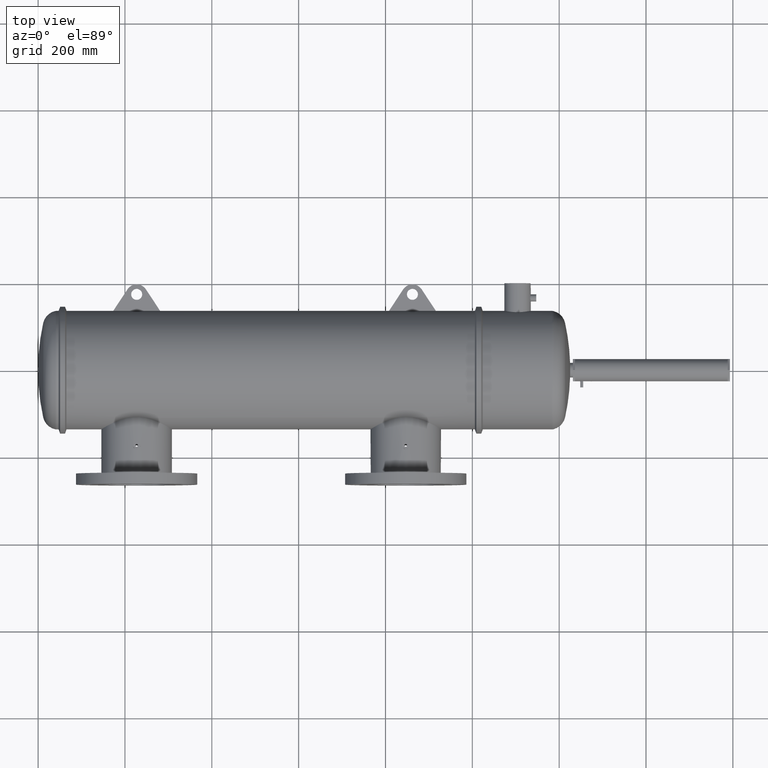
[diagram: clean part render]
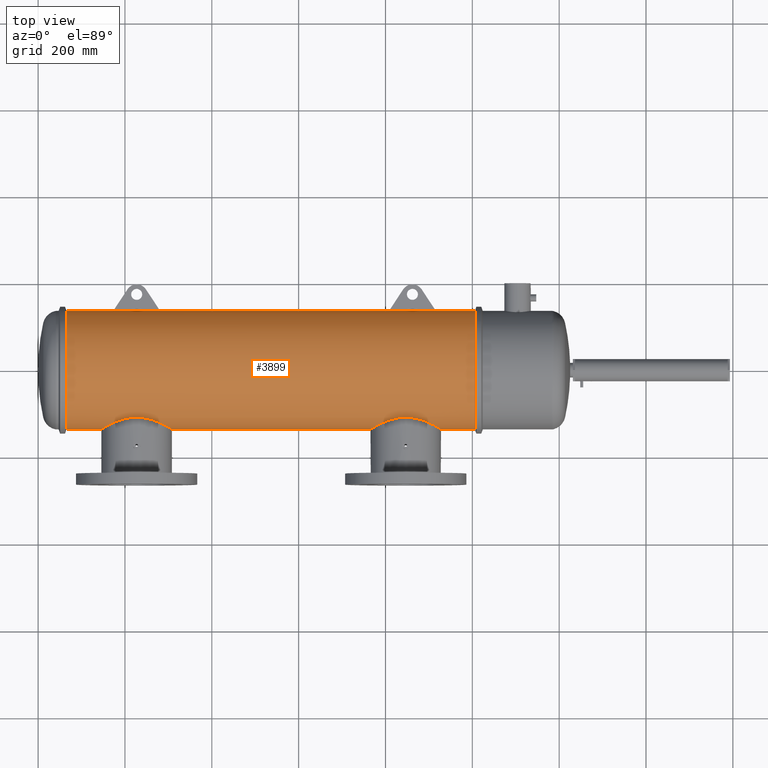
[diagram: same view with one face highlighted and labeled with its STEP entity id]
A machine part, top view. The second image highlights one B-rep face of the part: STEP entity #3899.
In plain terms, the highlighted cylindrical surface (partial cylindrical patch) has radius 136.525 mm, axis along (-1, 0, -0).
Its self-contained STEP definition (entity closure, byte-faithful):
#11 = CARTESIAN_POINT ( 'NONE',  ( 6.534671815832622200, -4.941297384899559800, 2.116959183514418400 ) ) ;
#23 = CARTESIAN_POINT ( 'NONE',  ( 39.60083111053822300, 4.831234793222033200, 2.381941341362917400 ) ) ;
#28 = CARTESIAN_POINT ( 'NONE',  ( 5.735479036835525500, -5.375007825107871000, -3.293080513677982000E-019 ) ) ;
#29 = CARTESIAN_POINT ( 'NONE',  ( 8.878122821673640500, -4.320985027269918200, 3.196841906858425300 ) ) ;
#42 = CARTESIAN_POINT ( 'NONE',  ( 6.028116187987716800, -5.206167466439103100, 1.340277761486192500 ) ) ;
#68 = CARTESIAN_POINT ( 'NONE',  ( 10.07615776907820900, -4.468858828034261600, 2.987028458037785100 ) ) ;
#75 = CARTESIAN_POINT ( 'NONE',  ( 5.822090545940645800, -5.323939033787544500, 0.7410242694495138300 ) ) ;
#173 = DIRECTION ( 'NONE',  ( -1.000000000000000000, 8.273921759108280900E-016, -0.0000000000000000000 ) ) ;
#190 = CARTESIAN_POINT ( 'NONE',  ( 12.12641592975402500, -5.373364310422112500, 0.1356452517023894700 ) ) ;
#218 = VERTEX_POINT ( 'NONE', #2849 ) ;
#254 = AXIS2_PLACEMENT_3D ( 'NONE', #7058, #173, #1972 ) ;
#256 = VECTOR ( 'NONE', #723, 39.37007874015748100 ) ;
#272 = DIRECTION ( 'NONE',  ( 1.000000000000000000, -8.273921759108280900E-016, 0.0000000000000000000 ) ) ;
#289 = CARTESIAN_POINT ( 'NONE',  ( 2.579100979076253800, 3.146306472120615500E-007, 0.0000000000000000000 ) ) ;
#385 = CARTESIAN_POINT ( 'NONE',  ( 31.46444722282175700, -4.706774420023686300, 2.596393439841609300 ) ) ;
#401 = CARTESIAN_POINT ( 'NONE',  ( 30.17836185290780200, -5.349586255494887000, 0.5326165018280276700 ) ) ;
#422 = CARTESIAN_POINT ( 'NONE',  ( 33.14366905566797100, -4.325011068737582700, 3.191393414857925500 ) ) ;
#452 = CARTESIAN_POINT ( 'NONE',  ( 39.60083022633880700, -5.375008985196261700, -3.291241836162370900E-016 ) ) ;
#469 = CARTESIAN_POINT ( 'NONE',  ( 39.60083111053821600, -1.731911471817332100, 5.100485536180544300 ) ) ;
#471 = AXIS2_PLACEMENT_3D ( 'NONE', #289, #3720, #4416 ) ;
#497 = EDGE_CURVE ( 'NONE', #218, #863, #2365, .T. ) ;
#499 = CARTESIAN_POINT ( 'NONE',  ( 34.94490591898632900, -4.611271304731676700, 2.762291557859466000 ) ) ;
#501 = CARTESIAN_POINT ( 'NONE',  ( 9.463533456321915300, -4.352274184478584800, 3.154220075589865900 ) ) ;
#527 = CARTESIAN_POINT ( 'NONE',  ( 35.73104329966341200, -4.942041029849721500, 2.113918209518154800 ) ) ;
#542 = ORIENTED_EDGE ( 'NONE', *, *, #3534, .F. ) ;
#548 = CARTESIAN_POINT ( 'NONE',  ( 36.52641646857046700, -5.373364630755303600, 0.1356320342420152000 ) ) ;
#549 = CARTESIAN_POINT ( 'NONE',  ( 7.737523241736865600, -4.482888961965052500, 2.965636830458920200 ) ) ;
#560 = CARTESIAN_POINT ( 'NONE',  ( 11.36440780600174000, -4.958332715586958100, 2.075441474412965900 ) ) ;
#571 = CARTESIAN_POINT ( 'NONE',  ( 7.935488441926860800, -4.434199739322871800, 3.037917448498888500 ) ) ;
#603 = CARTESIAN_POINT ( 'NONE',  ( 6.255879223371008100, -5.082679524512489200, 1.749040711027071800 ) ) ;
#613 = CARTESIAN_POINT ( 'NONE',  ( 5.910467032050950000, -5.272745599277024900, 1.048584362678096200 ) ) ;
#622 = CARTESIAN_POINT ( 'NONE',  ( 36.52227491814217300, -5.370903458972454000, 0.2168932640493000700 ) ) ;
#650 = VERTEX_POINT ( 'NONE', #6315 ) ;
#669 = CARTESIAN_POINT ( 'NONE',  ( 12.10171796705378700, -5.358712793658628300, 0.4317730696603192500 ) ) ;
#723 = DIRECTION ( 'NONE',  ( -1.000000000000000000, 8.273921759108280900E-016, -0.0000000000000000000 ) ) ;
#730 = CARTESIAN_POINT ( 'NONE',  ( 12.12883387857428700, -5.374802048271067000, 0.05429419774343390000 ) ) ;
#750 = LINE ( 'NONE', #4635, #5386 ) ;
#767 = B_SPLINE_CURVE_WITH_KNOTS ( 'NONE', 3,
 ( #7123, #1355, #7244, #5525, #401, #3272, #3773, #7294, #3172, #1513, #6678, #4945, #7321, #4997, #2052, #4353, #966, #5544, #5015, #5044, #6159, #6099, #4434, #914, #3812, #1488, #385, #2065, #6726, #935, #6139, #6176, #2663, #2095, #1450, #6742, #7338, #3232, #3250, #4451, #3862, #2032, #422, #3838, #1530, #2609 ),
 .UNSPECIFIED., .F., .F.,
 ( 4, 2, 2, 2, 2, 2, 2, 2, 2, 2, 2, 2, 2, 2, 2, 2, 2, 2, 2, 2, 2, 2, 4 ),
 ( 0.2603733164959427500, 0.2684950748530244800, 0.2766168332101062200, 0.2806777123886470800, 0.2847385915671878900, 0.2928603499242695700, 0.3009821082813511900, 0.3050429874598920000, 0.3091038666384327600, 0.3172256249955141000, 0.3253473833525955000, 0.3294082625311362500, 0.3334691417096770600, 0.3415909000667586300, 0.3497126584238401900, 0.3578344167809217600, 0.3618952959594624000, 0.3659561751380030500, 0.3740779334950843400, 0.3821996918521655700, 0.3842301314414359200, 0.3862605710307062100, 0.3903214502092468600 ),
 .UNSPECIFIED. ) ;
#863 = VERTEX_POINT ( 'NONE', #1899 ) ;
#914 = CARTESIAN_POINT ( 'NONE',  ( 31.22458414646406800, -4.807524720786678300, 2.404137780907944500 ) ) ;
#935 = CARTESIAN_POINT ( 'NONE',  ( 31.90104348600639400, -4.551067891444288800, 2.860377699113140000 ) ) ;
#947 = VECTOR ( 'NONE', #2034, 39.37007874015748100 ) ;
#966 = CARTESIAN_POINT ( 'NONE',  ( 30.65597611453734900, -5.082628482242812500, 1.749189100739273000 ) ) ;
#992 = CARTESIAN_POINT ( 'NONE',  ( 39.60083111053822300, 2.381941655993532200, 4.831234478591420100 ) ) ;
#1067 = CARTESIAN_POINT ( 'NONE',  ( 35.20258934707638300, -4.707714968915731800, 2.594695052599537800 ) ) ;
#1076 = CARTESIAN_POINT ( 'NONE',  ( 11.83512405955653400, -5.205450456522795500, 1.340293963979122300 ) ) ;
#1085 = CARTESIAN_POINT ( 'NONE',  ( 36.52917982423710400, -5.375007825107895900, 0.0000000000000000000 ) ) ;
#1105 = VERTEX_POINT ( 'NONE', #1516 ) ;
#1106 = CARTESIAN_POINT ( 'NONE',  ( 39.60083111053822300, 4.273710274099636700, 3.278700096556493600 ) ) ;
#1116 = CARTESIAN_POINT ( 'NONE',  ( 36.25698515119475500, -5.217679610351180700, 1.291906982343548500 ) ) ;
#1121 = CARTESIAN_POINT ( 'NONE',  ( 6.815373600816323900, 5.374523871610070300, 0.08333990753326353500 ) ) ;
#1129 = CARTESIAN_POINT ( 'NONE',  ( 11.85693317493086600, -5.217650465492674500, 1.292024858656857700 ) ) ;
#1130 = LINE ( 'NONE', #1212, #256 ) ;
#1143 = CARTESIAN_POINT ( 'NONE',  ( 36.31852845076420500, -5.252341568898184000, 1.146122608671361200 ) ) ;
#1144 = CARTESIAN_POINT ( 'NONE',  ( 8.501677666990884700, -4.341076463470509200, 3.169534228022510300 ) ) ;
#1145 = CARTESIAN_POINT ( 'NONE',  ( 36.06357383615594600, 5.374523871610046300, 0.08333990753326371600 ) ) ;
#1154 = CARTESIAN_POINT ( 'NONE',  ( 9.827062362438832500, -4.412367742990288600, 3.069540436262475400 ) ) ;
#1177 = CARTESIAN_POINT ( 'NONE',  ( 5.863175780064940700, -5.300037275465029100, 0.8960918367193684300 ) ) ;
#1203 = CARTESIAN_POINT ( 'NONE',  ( 6.073308518760357300, -5.181035325470386300, 1.434107133292558300 ) ) ;
#1205 = VECTOR ( 'NONE', #5286, 39.37007874015748100 ) ;
#1212 = CARTESIAN_POINT ( 'NONE',  ( 5.449043696650528900E-006, 5.375008454369165600, 6.582486513721743800E-016 ) ) ;
#1215 =( BOUNDED_CURVE ( )  B_SPLINE_CURVE ( 3, ( #3876, #2146, #1145, #5790 ),
 .UNSPECIFIED., .F., .T. ) 
 B_SPLINE_CURVE_WITH_KNOTS ( ( 4, 4 ),
 ( 0.0000000000000000000, 0.02325787548793046800 ),
 .UNSPECIFIED. ) 
 CURVE ( )  GEOMETRIC_REPRESENTATION_ITEM ( )  RATIONAL_B_SPLINE_CURVE ( ( 1.000000000000000000, 0.9999549231103063200, 0.9999549231103063200, 1.000000000000000000 ) ) 
 REPRESENTATION_ITEM ( '' )  );
#1224 = ORIENTED_EDGE ( 'NONE', *, *, #2348, .F. ) ;
#1253 = CARTESIAN_POINT ( 'NONE',  ( 9.776145522672669200, -4.402307470897649300, 3.083935646095826500 ) ) ;
#1272 = ORIENTED_EDGE ( 'NONE', *, *, #4435, .T. ) ;
#1355 = CARTESIAN_POINT ( 'NONE',  ( 30.13547903683552300, -5.375007825107890500, 0.1080032569432895400 ) ) ;
#1436 =( BOUNDED_CURVE ( )  B_SPLINE_CURVE ( 3, ( #2830, #1121, #6880, #4520 ),
 .UNSPECIFIED., .F., .T. ) 
 B_SPLINE_CURVE_WITH_KNOTS ( ( 4, 4 ),
 ( 3.118334778101862900, 3.141592653589793100 ),
 .UNSPECIFIED. ) 
 CURVE ( )  GEOMETRIC_REPRESENTATION_ITEM ( )  RATIONAL_B_SPLINE_CURVE ( ( 1.000000000000000000, 0.9999549231103063200, 0.9999549231103063200, 1.000000000000000000 ) ) 
 REPRESENTATION_ITEM ( '' )  );
#1449 = CARTESIAN_POINT ( 'NONE',  ( 31.81473452475017500, 5.373554771622319300, 0.1250000000000000000 ) ) ;
#1450 = CARTESIAN_POINT ( 'NONE',  ( 32.33586494862065300, -4.434115029401516100, 3.038041054493293200 ) ) ;
#1488 = CARTESIAN_POINT ( 'NONE',  ( 31.38250396117173600, -4.739991500496905100, 2.535463347313905200 ) ) ;
#1496 = CARTESIAN_POINT ( 'NONE',  ( 11.06325427652264500, 5.375008454369157600, 6.582486513721743800E-016 ) ) ;
#1513 = CARTESIAN_POINT ( 'NONE',  ( 30.31050054417878000, -5.272726369566093800, 1.048681915996266400 ) ) ;
#1516 = CARTESIAN_POINT ( 'NONE',  ( 36.52917982423710400, -5.375007825107895900, 0.0000000000000000000 ) ) ;
#1530 = CARTESIAN_POINT ( 'NONE',  ( 33.27862148709935800, -4.320978748330734500, 3.196850393700788800 ) ) ;
#1537 = CARTESIAN_POINT ( 'NONE',  ( 35.66205765722769900, -4.908928085219284500, 2.189713408698171100 ) ) ;
#1579 = CARTESIAN_POINT ( 'NONE',  ( 2.579100979076258200, 5.375008454369143400, 6.582486513721749700E-016 ) ) ;
#1582 = CARTESIAN_POINT ( 'NONE',  ( 39.60083111053820900, -5.203097051458443400, 1.393645916228845500 ) ) ;
#1587 = CARTESIAN_POINT ( 'NONE',  ( 12.12917982423710400, -5.375007825107876300, 0.0000000000000000000 ) ) ;
#1619 = CARTESIAN_POINT ( 'NONE',  ( 39.60083111053822300, 0.3517937747303615000, 5.375008139738515200 ) ) ;
#1624 = CARTESIAN_POINT ( 'NONE',  ( 35.44169094797655400, -4.807825875324456700, 2.404335654029067500 ) ) ;
#1697 = CARTESIAN_POINT ( 'NONE',  ( 39.60083022633880700, -5.375008985196261700, -3.291241836162370900E-016 ) ) ;
#1707 = CARTESIAN_POINT ( 'NONE',  ( 36.23518000858609200, -5.205481669030823400, 1.340172605830954700 ) ) ;
#1708 = CARTESIAN_POINT ( 'NONE',  ( 8.635358965702050000, -4.331089696136874800, 3.183140464304496900 ) ) ;
#1747 = ORIENTED_EDGE ( 'NONE', *, *, #7334, .F. ) ;
#1752 = CARTESIAN_POINT ( 'NONE',  ( 6.227714763413929200, -5.097575429480923700, 1.705174419643677800 ) ) ;
#1800 = CARTESIAN_POINT ( 'NONE',  ( 12.12917982423710400, -5.375007825107875400, 0.02706690673560841600 ) ) ;
#1834 = CARTESIAN_POINT ( 'NONE',  ( 5.449043696649326100E-006, 5.373554771622345100, 0.1250000000000000000 ) ) ;
#1893 = CARTESIAN_POINT ( 'NONE',  ( 5.449043696650528900E-006, 5.375008454369165600, 6.582486513721743800E-016 ) ) ;
#1899 = CARTESIAN_POINT ( 'NONE',  ( 11.06421291220847400, 5.373554771622334400, 0.1250000000000000000 ) ) ;
#1972 = DIRECTION ( 'NONE',  ( -8.273921938586684700E-016, -1.000000000000000000, 0.0000000000000000000 ) ) ;
#2032 = CARTESIAN_POINT ( 'NONE',  ( 33.11657182071319700, -4.326278396239411400, 3.189675769125875700 ) ) ;
#2034 = DIRECTION ( 'NONE',  ( -1.000000000000000000, 8.273921759108280900E-016, -0.0000000000000000000 ) ) ;
#2052 = CARTESIAN_POINT ( 'NONE',  ( 30.57373196064274300, -5.126421221521794400, 1.616385114890627900 ) ) ;
#2065 = CARTESIAN_POINT ( 'NONE',  ( 31.63364810749537200, -4.642225735243693300, 2.710115237236416300 ) ) ;
#2095 = CARTESIAN_POINT ( 'NONE',  ( 32.28577523967284400, -4.445652231771755500, 3.021152426388337400 ) ) ;
#2142 = CARTESIAN_POINT ( 'NONE',  ( 39.60083111053821600, -4.049459931124993700, 3.551949163328379700 ) ) ;
#2146 = CARTESIAN_POINT ( 'NONE',  ( 36.06325427652258500, 5.375008454369136300, 0.04167136257819258800 ) ) ;
#2177 = CARTESIAN_POINT ( 'NONE',  ( 9.039234109388738500, -4.320966278229081000, 3.196867248743247000 ) ) ;
#2192 = CARTESIAN_POINT ( 'NONE',  ( 11.63793810717211700, -5.097919537612193100, 1.705877881590637200 ) ) ;
#2201 = CARTESIAN_POINT ( 'NONE',  ( 39.60083111053821600, 4.664602223304413500, 2.693688952797079300 ) ) ;
#2205 = CARTESIAN_POINT ( 'NONE',  ( 34.02111500732848300, -4.375225417697532000, 3.122224169517532600 ) ) ;
#2206 = CARTESIAN_POINT ( 'NONE',  ( 6.711577159216829200, -4.858145116798382900, 2.300154178794082700 ) ) ;
#2229 = CARTESIAN_POINT ( 'NONE',  ( 36.03802869668179200, -5.097967704092583000, 1.705733621750331600 ) ) ;
#2230 = CARTESIAN_POINT ( 'NONE',  ( 6.404466135698663200, -5.005771729262621200, 1.959639095503343600 ) ) ;
#2298 = CARTESIAN_POINT ( 'NONE',  ( 10.36174314260566100, -4.550455003691378200, 2.861369716635247400 ) ) ;
#2343 = CARTESIAN_POINT ( 'NONE',  ( 10.88406810460554100, -4.740787452716062100, 2.533960158021442600 ) ) ;
#2348 = EDGE_CURVE ( 'NONE', #650, #5390, #5475, .T. ) ;
#2365 = LINE ( 'NONE', #1834, #6194 ) ;
#2382 = DIRECTION ( 'NONE',  ( -1.000000000000000000, 8.273921759108280900E-016, -0.0000000000000000000 ) ) ;
#2425 = CARTESIAN_POINT ( 'NONE',  ( 5.449043696650528900E-006, 5.375008454369165600, 6.582486513721743800E-016 ) ) ;
#2543 = ORIENTED_EDGE ( 'NONE', *, *, #6319, .T. ) ;
#2582 = VERTEX_POINT ( 'NONE', #4474 ) ;
#2609 = CARTESIAN_POINT ( 'NONE',  ( 33.33232943053631200, -4.320978748330736300, 3.196850393700789300 ) ) ;
#2663 = CARTESIAN_POINT ( 'NONE',  ( 32.18662337964880000, -4.470032486586873700, 2.984961524516816000 ) ) ;
#2668 = CARTESIAN_POINT ( 'NONE',  ( 39.60083111053821600, -0.7035779067823309000, 5.340360364917113000 ) ) ;
#2705 = CARTESIAN_POINT ( 'NONE',  ( 39.60083111053821600, -5.375007825107899400, 0.3517934600997456600 ) ) ;
#2737 = EDGE_CURVE ( 'NONE', #650, #7322, #4511, .T. ) ;
#2739 = CARTESIAN_POINT ( 'NONE',  ( 39.60083111053821600, -3.551948848697773300, 4.049460245755600600 ) ) ;
#2745 = CARTESIAN_POINT ( 'NONE',  ( 33.33232943053631200, -4.320978748330736300, 3.196850393700789300 ) ) ;
#2758 = CARTESIAN_POINT ( 'NONE',  ( 11.52322315305939800, -5.037975349285789900, 1.875528559254045400 ) ) ;
#2766 = CARTESIAN_POINT ( 'NONE',  ( 39.60083111053821600, -5.100485221549928600, 1.731911786447945600 ) ) ;
#2773 = CARTESIAN_POINT ( 'NONE',  ( 34.07344422767565800, -4.383781193235752700, 3.110214267648784500 ) ) ;
#2783 = CARTESIAN_POINT ( 'NONE',  ( 11.76579449012679600, -5.167102609319917100, 1.481222573982051300 ) ) ;
#2794 = CARTESIAN_POINT ( 'NONE',  ( 33.86397463882426000, -4.352328371482397700, 3.154145430295705900 ) ) ;
#2796 = CARTESIAN_POINT ( 'NONE',  ( 8.824249774869711500, -4.321992792964529400, 3.195481140350527200 ) ) ;
#2815 = CARTESIAN_POINT ( 'NONE',  ( 5.449043687756049300E-006, -5.375007825107866600, 0.0000000000000000000 ) ) ;
#2825 = CARTESIAN_POINT ( 'NONE',  ( 6.982282729583408500, -4.740082699066595000, 2.535292842899302500 ) ) ;
#2830 = CARTESIAN_POINT ( 'NONE',  ( 6.814734524750262400, 5.373554771622336200, 0.1250000000000000000 ) ) ;
#2849 = CARTESIAN_POINT ( 'NONE',  ( 6.814734524750262400, 5.373554771622336200, 0.1250000000000000000 ) ) ;
#2856 = CARTESIAN_POINT ( 'NONE',  ( 36.44308507795383200, -5.324224106822828000, 0.7444825928127591900 ) ) ;
#2878 = CARTESIAN_POINT ( 'NONE',  ( 8.188852466262581200, -4.383272696462317900, 3.110998273017834500 ) ) ;
#2888 = CARTESIAN_POINT ( 'NONE',  ( 10.54462792657590400, -4.611173774918007100, 2.762454302825232400 ) ) ;
#2900 = CARTESIAN_POINT ( 'NONE',  ( 36.48551590511708300, -5.349125776193975700, 0.5370941122951401500 ) ) ;
#2910 = CARTESIAN_POINT ( 'NONE',  ( 10.63263442813579700, -4.642816263482791900, 2.709110504970410300 ) ) ;
#2917 = CARTESIAN_POINT ( 'NONE',  ( 5.740936256740442700, -5.371756934328479900, 0.2150425739588806600 ) ) ;
#2952 = EDGE_CURVE ( 'NONE', #3362, #3298, #6343, .T. ) ;
#2971 = CARTESIAN_POINT ( 'NONE',  ( 6.815693160456486800, 5.375008454369160300, 6.582486513721743800E-016 ) ) ;
#3027 = CARTESIAN_POINT ( 'NONE',  ( 2.579100979076249400, -5.375007825107847900, 0.0000000000000000000 ) ) ;
#3044 = CARTESIAN_POINT ( 'NONE',  ( 11.91848831836088400, -5.252318708625803200, 1.146228147450304700 ) ) ;
#3134 = ORIENTED_EDGE ( 'NONE', *, *, #3329, .T. ) ;
#3145 = B_SPLINE_CURVE_WITH_KNOTS ( 'NONE', 3,
 ( #452, #2705, #6246, #1582, #2766, #6163, #5646, #6847, #2142, #2739, #7412, #3347, #6812, #469, #4531, #2668, #5121, #1619, #4457, #6752, #6775, #992, #5698, #3962, #6352, #4011, #1106, #2201, #23, #4591, #4037, #4060, #5190, #6911 ),
 .UNSPECIFIED., .F., .F.,
 ( 4, 2, 2, 2, 2, 2, 2, 2, 2, 2, 2, 2, 2, 2, 2, 2, 4 ),
 ( 0.5000000000000000000, 0.5312500000000000000, 0.5625000000000000000, 0.5937500000000000000, 0.6250000000000000000, 0.6562500000000000000, 0.6875000000000001100, 0.7187500000000000000, 0.7500000000000000000, 0.7812500000000000000, 0.8125000000000000000, 0.8437500000000000000, 0.8750000000000000000, 0.9062500000000000000, 0.9375000000000000000, 0.9687500000000000000, 1.000000000000000000 ),
 .UNSPECIFIED. ) ;
#3172 = CARTESIAN_POINT ( 'NONE',  ( 30.26320053908389000, -5.300022932131089900, 0.8961769201844578300 ) ) ;
#3227 = LINE ( 'NONE', #7476, #3403 ) ;
#3232 = CARTESIAN_POINT ( 'NONE',  ( 32.79681724609879700, -4.352825707961236500, 3.153458011038672300 ) ) ;
#3250 = CARTESIAN_POINT ( 'NONE',  ( 32.90213181539472500, -4.341031038746834300, 3.169596366409747300 ) ) ;
#3272 = CARTESIAN_POINT ( 'NONE',  ( 30.21018778279680800, -5.330905308534741300, 0.6891435379636391400 ) ) ;
#3298 = VERTEX_POINT ( 'NONE', #1587 ) ;
#3311 = CARTESIAN_POINT ( 'NONE',  ( 34.76205377358530800, -4.550552916960153700, 2.861214057811235300 ) ) ;
#3329 = EDGE_CURVE ( 'NONE', #6863, #1105, #5869, .T. ) ;
#3347 = CARTESIAN_POINT ( 'NONE',  ( 39.60083111053821600, -2.693688638166461800, 4.664601908673796900 ) ) ;
#3352 = CARTESIAN_POINT ( 'NONE',  ( 34.22745307568795400, -4.412447084991268500, 3.069426412508181400 ) ) ;
#3353 = CARTESIAN_POINT ( 'NONE',  ( 9.358114798717316800, -4.340617456666036500, 3.170161636733196200 ) ) ;
#3362 = VERTEX_POINT ( 'NONE', #28 ) ;
#3403 = VECTOR ( 'NONE', #3918, 39.37007874015748100 ) ;
#3413 = CARTESIAN_POINT ( 'NONE',  ( 7.593602566793592200, -4.522670044543008100, 2.904910948901954900 ) ) ;
#3434 = CARTESIAN_POINT ( 'NONE',  ( 7.885403791028891400, -4.445739792432004100, 3.021023603896181500 ) ) ;
#3463 = CARTESIAN_POINT ( 'NONE',  ( 8.086627073126855700, -4.401861216280408900, 3.084763803830189700 ) ) ;
#3465 = LINE ( 'NONE', #2425, #1205 ) ;
#3479 = CARTESIAN_POINT ( 'NONE',  ( 5.762373014788998700, -5.359048969499109000, 0.4273289372698257900 ) ) ;
#3499 = CARTESIAN_POINT ( 'NONE',  ( 11.04149662315126600, -4.807740428126800600, 2.404506537294990300 ) ) ;
#3511 = CARTESIAN_POINT ( 'NONE',  ( 36.50172326547107800, -5.358715930169902100, 0.4317316148196079200 ) ) ;
#3534 = EDGE_CURVE ( 'NONE', #4625, #1105, #7190, .T. ) ;
#3592 = DIRECTION ( 'NONE',  ( -1.000000000000000000, 8.273921759108280900E-016, -0.0000000000000000000 ) ) ;
#3611 = ORIENTED_EDGE ( 'NONE', *, *, #497, .F. ) ;
#3701 = VERTEX_POINT ( 'NONE', #2971 ) ;
#3720 = DIRECTION ( 'NONE',  ( -1.000000000000000000, 8.273921759108280900E-016, -0.0000000000000000000 ) ) ;
#3773 = CARTESIAN_POINT ( 'NONE',  ( 30.22210733472385900, -5.323929221530093500, 0.7410951149761313400 ) ) ;
#3812 = CARTESIAN_POINT ( 'NONE',  ( 31.26349905586406700, -4.790576887304715600, 2.437709713491520000 ) ) ;
#3838 = CARTESIAN_POINT ( 'NONE',  ( 33.22474423640207400, -4.321980400645880000, 3.195497890574240600 ) ) ;
#3839 = ORIENTED_EDGE ( 'NONE', *, *, #6170, .T. ) ;
#3862 = CARTESIAN_POINT ( 'NONE',  ( 33.06267530559787100, -4.329300955208083200, 3.185572085395182600 ) ) ;
#3873 = CARTESIAN_POINT ( 'NONE',  ( 35.86214447512192300, -5.006758123534425800, 1.957122016668238200 ) ) ;
#3876 = CARTESIAN_POINT ( 'NONE',  ( 36.06325427652258500, 5.375008454369136300, 6.582486513721743800E-016 ) ) ;
#3899 = ADVANCED_FACE ( 'NONE', ( #5281 ), #5916, .T. ) ;
#3911 = ORIENTED_EDGE ( 'NONE', *, *, #4117, .F. ) ;
#3918 = DIRECTION ( 'NONE',  ( -1.000000000000000000, 8.273921759108280900E-016, -0.0000000000000000000 ) ) ;
#3943 = CARTESIAN_POINT ( 'NONE',  ( 34.66832484761322100, -4.521862738430088200, 2.906165215051325300 ) ) ;
#3944 = CARTESIAN_POINT ( 'NONE',  ( 7.320630299928387400, -4.610988638921803300, 2.762745674904474300 ) ) ;
#3962 = CARTESIAN_POINT ( 'NONE',  ( 39.60083111053821600, 3.278700411187107600, 4.273709959469022700 ) ) ;
#3975 = CARTESIAN_POINT ( 'NONE',  ( 5.735479036835529100, -5.375007825107872800, 0.1079927237980347900 ) ) ;
#3976 = ORIENTED_EDGE ( 'NONE', *, *, #4067, .T. ) ;
#3984 = CARTESIAN_POINT ( 'NONE',  ( 36.16586264531451900, -5.167139998950562900, 1.481092030653899900 ) ) ;
#4002 = VERTEX_POINT ( 'NONE', #6130 ) ;
#4011 = CARTESIAN_POINT ( 'NONE',  ( 39.60083111053821600, 4.049460560386223500, 3.551949163328381500 ) ) ;
#4018 = CIRCLE ( 'NONE', #471, 5.375008139738495700 ) ;
#4037 = CARTESIAN_POINT ( 'NONE',  ( 39.60083111053822300, 5.203097680719674000, 1.393645916228859200 ) ) ;
#4060 = CARTESIAN_POINT ( 'NONE',  ( 39.60083111053821600, 5.340360679547729600, 0.7035782214129531200 ) ) ;
#4067 = EDGE_CURVE ( 'NONE', #6150, #5390, #1215, .T. ) ;
#4076 = CARTESIAN_POINT ( 'NONE',  ( 5.946696095909337600, -5.252021659360880600, 1.147515850562982300 ) ) ;
#4117 = EDGE_CURVE ( 'NONE', #4002, #3298, #3227, .T. ) ;
#4241 = ORIENTED_EDGE ( 'NONE', *, *, #5497, .F. ) ;
#4306 = CARTESIAN_POINT ( 'NONE',  ( 36.06325427652258500, 5.375008454369136300, 6.582486513721743800E-016 ) ) ;
#4353 = CARTESIAN_POINT ( 'NONE',  ( 30.62780680849810400, -5.097526573826221400, 1.705320564417956300 ) ) ;
#4355 = EDGE_CURVE ( 'NONE', #2582, #863, #4373, .T. ) ;
#4373 =( BOUNDED_CURVE ( )  B_SPLINE_CURVE ( 3, ( #1496, #6113, #4919, #6628 ),
 .UNSPECIFIED., .F., .T. ) 
 B_SPLINE_CURVE_WITH_KNOTS ( ( 4, 4 ),
 ( 0.0000000000000000000, 0.02325787548793047100 ),
 .UNSPECIFIED. ) 
 CURVE ( )  GEOMETRIC_REPRESENTATION_ITEM ( )  RATIONAL_B_SPLINE_CURVE ( ( 1.000000000000000000, 0.9999549231103063200, 0.9999549231103063200, 1.000000000000000000 ) ) 
 REPRESENTATION_ITEM ( '' )  );
#4416 = DIRECTION ( 'NONE',  ( -8.132000317445987000E-016, -1.000000000000000000, 0.0000000000000000000 ) ) ;
#4428 = CARTESIAN_POINT ( 'NONE',  ( 39.60083022633882900, 5.375009614457495900, 3.291243256860871900E-016 ) ) ;
#4434 = CARTESIAN_POINT ( 'NONE',  ( 31.14875131337305400, -4.841251607898253300, 2.335477522555838600 ) ) ;
#4435 = EDGE_CURVE ( 'NONE', #4625, #5172, #3145, .T. ) ;
#4451 = CARTESIAN_POINT ( 'NONE',  ( 33.03583218325426400, -4.331057249951047800, 3.183184606522918800 ) ) ;
#4457 = CARTESIAN_POINT ( 'NONE',  ( 39.60083111053822300, 0.7035785360435564700, 5.340360364917113000 ) ) ;
#4463 = CARTESIAN_POINT ( 'NONE',  ( 35.62649174083491500, -4.892136429503371400, 2.226950908192078000 ) ) ;
#4474 = CARTESIAN_POINT ( 'NONE',  ( 11.06325427652264500, 5.375008454369157600, 6.582486513721743800E-016 ) ) ;
#4511 =( BOUNDED_CURVE ( )  B_SPLINE_CURVE ( 3, ( #1449, #7087, #4799, #7243 ),
 .UNSPECIFIED., .F., .F. ) 
 B_SPLINE_CURVE_WITH_KNOTS ( ( 4, 4 ),
 ( 3.118334778101863300, 3.141592653589793100 ),
 .UNSPECIFIED. ) 
 CURVE ( )  GEOMETRIC_REPRESENTATION_ITEM ( )  RATIONAL_B_SPLINE_CURVE ( ( 1.000000000000000000, 0.9999549231103063200, 0.9999549231103063200, 1.000000000000000000 ) ) 
 REPRESENTATION_ITEM ( '' )  );
#4520 = CARTESIAN_POINT ( 'NONE',  ( 6.815693160456486800, 5.375008454369160300, 6.582486513721743800E-016 ) ) ;
#4531 = CARTESIAN_POINT ( 'NONE',  ( 39.60083111053822300, -1.393645601598237000, 5.203097366089058300 ) ) ;
#4535 = CARTESIAN_POINT ( 'NONE',  ( 35.03289716489992100, -4.642912742349666100, 2.708945173354822400 ) ) ;
#4536 = CARTESIAN_POINT ( 'NONE',  ( 9.620691804970462600, -4.375158734489269300, 3.122317580229195100 ) ) ;
#4566 = CARTESIAN_POINT ( 'NONE',  ( 7.500738784632093600, -4.551164022066153300, 2.860224811857499500 ) ) ;
#4591 = CARTESIAN_POINT ( 'NONE',  ( 39.60083111053822300, 5.100485850811160100, 1.731911786447953000 ) ) ;
#4598 = CARTESIAN_POINT ( 'NONE',  ( 36.18964809824004900, -5.180228557972238700, 1.434689556348453000 ) ) ;
#4599 = CARTESIAN_POINT ( 'NONE',  ( 6.603288475323051200, -4.908278111944783400, 2.192215887407712200 ) ) ;
#4624 = CARTESIAN_POINT ( 'NONE',  ( 8.396377845956077800, -4.352880156320095400, 3.153382969147826600 ) ) ;
#4625 = VERTEX_POINT ( 'NONE', #1697 ) ;
#4635 = CARTESIAN_POINT ( 'NONE',  ( 5.449043687756049300E-006, -5.375007825107866600, 0.0000000000000000000 ) ) ;
#4663 = CARTESIAN_POINT ( 'NONE',  ( 5.810173309975708900, -5.330913787521053500, 0.6890775623529922200 ) ) ;
#4725 = CARTESIAN_POINT ( 'NONE',  ( 12.12745193149852300, -5.373980291036097000, 0.1085391638080142700 ) ) ;
#4746 = CARTESIAN_POINT ( 'NONE',  ( 12.04306863106081900, -5.324214486899816000, 0.7445527440632568900 ) ) ;
#4799 = CARTESIAN_POINT ( 'NONE',  ( 31.81569316045639400, 5.375008454369137200, 0.04167136257819203200 ) ) ;
#4851 = LINE ( 'NONE', #1893, #5936 ) ;
#4919 = CARTESIAN_POINT ( 'NONE',  ( 11.06357383615601200, 5.374523871610067600, 0.08333990753326371600 ) ) ;
#4921 = ORIENTED_EDGE ( 'NONE', *, *, #6305, .T. ) ;
#4945 = CARTESIAN_POINT ( 'NONE',  ( 30.42817131681466200, -5.206136672475350800, 1.340397971859443900 ) ) ;
#4997 = CARTESIAN_POINT ( 'NONE',  ( 30.54781045870885600, -5.140425078016553700, 1.571308343800071200 ) ) ;
#5015 = CARTESIAN_POINT ( 'NONE',  ( 30.80458832328141500, -5.005709908809705200, 1.959797194672693800 ) ) ;
#5031 = CARTESIAN_POINT ( 'NONE',  ( 34.37834828597172500, -4.444699688244354800, 3.022711796154010900 ) ) ;
#5044 = CARTESIAN_POINT ( 'NONE',  ( 30.93481633183858300, -4.941227143620612800, 2.117123305602678100 ) ) ;
#5089 = VECTOR ( 'NONE', #272, 39.37007874015748100 ) ;
#5121 = CARTESIAN_POINT ( 'NONE',  ( 39.60083111053822300, -0.3517931454691321500, 5.375008139738516100 ) ) ;
#5128 = CARTESIAN_POINT ( 'NONE',  ( 35.28428834816370600, -4.740878325206647800, 2.533790112141898600 ) ) ;
#5129 = CARTESIAN_POINT ( 'NONE',  ( 8.716086999426105200, -4.326302627185545400, 3.189642907264506700 ) ) ;
#5157 = CARTESIAN_POINT ( 'NONE',  ( 36.52917982423710400, -5.375007825107895900, 0.02706426674607771700 ) ) ;
#5172 = VERTEX_POINT ( 'NONE', #4428 ) ;
#5175 = CARTESIAN_POINT ( 'NONE',  ( 36.35458160841977800, -5.272970534410854200, 1.047328046668175800 ) ) ;
#5190 = CARTESIAN_POINT ( 'NONE',  ( 39.60083111053822300, 5.375008454369131000, 0.3517934600997484900 ) ) ;
#5201 = CARTESIAN_POINT ( 'NONE',  ( 7.233387142621150900, -4.642321469768308600, 2.709951279637595500 ) ) ;
#5230 = CARTESIAN_POINT ( 'NONE',  ( 36.52745226837650700, -5.373980491339524200, 0.1085285853650725800 ) ) ;
#5240 = EDGE_CURVE ( 'NONE', #218, #3701, #1436, .T. ) ;
#5244 = CARTESIAN_POINT ( 'NONE',  ( 6.147733281081130500, -5.140466901000604800, 1.571171402219135000 ) ) ;
#5258 = CARTESIAN_POINT ( 'NONE',  ( 33.33232943053631200, -4.320978748330736300, 3.196850393700789300 ) ) ;
#5281 = FACE_OUTER_BOUND ( 'NONE', #5332, .T. ) ;
#5286 = DIRECTION ( 'NONE',  ( -1.000000000000000000, 8.273921759108280900E-016, -0.0000000000000000000 ) ) ;
#5308 = CARTESIAN_POINT ( 'NONE',  ( 11.95454834835666700, -5.272951447476386600, 1.047425043786761400 ) ) ;
#5329 = CARTESIAN_POINT ( 'NONE',  ( 12.12227357172657000, -5.370902659115627900, 0.2169143889843447600 ) ) ;
#5332 = EDGE_LOOP ( 'NONE', ( #1272, #4921, #3976, #1224, #6206, #2543, #6873, #3611, #6875, #6220, #4241, #1747, #6956, #3911, #3839, #3134, #542 ) ) ;
#5357 = DIRECTION ( 'NONE',  ( 1.000000000000000000, -8.273921759108280900E-016, 0.0000000000000000000 ) ) ;
#5386 = VECTOR ( 'NONE', #2382, 39.37007874015748100 ) ;
#5390 = VERTEX_POINT ( 'NONE', #7073 ) ;
#5475 = LINE ( 'NONE', #7175, #5089 ) ;
#5497 = EDGE_CURVE ( 'NONE', #7120, #7186, #4018, .T. ) ;
#5525 = CARTESIAN_POINT ( 'NONE',  ( 30.16237822585759400, -5.359045884380832600, 0.4273701709447971800 ) ) ;
#5544 = CARTESIAN_POINT ( 'NONE',  ( 30.74298859352569800, -5.037171455475461600, 1.877731354451201100 ) ) ;
#5624 = CARTESIAN_POINT ( 'NONE',  ( 35.92333395407638400, -5.038032420684773500, 1.875374966822520600 ) ) ;
#5646 = CARTESIAN_POINT ( 'NONE',  ( 39.60083111053821600, -4.664601594043183800, 2.693688952797076200 ) ) ;
#5666 = CARTESIAN_POINT ( 'NONE',  ( 11.26189998136322000, -4.908853219175960600, 2.189881279579822100 ) ) ;
#5680 = CARTESIAN_POINT ( 'NONE',  ( 8.662198242410463300, -4.329330720778089300, 3.185531636332772400 ) ) ;
#5688 = CARTESIAN_POINT ( 'NONE',  ( 11.46202284368655800, -5.006696543922484600, 1.957279762535151700 ) ) ;
#5698 = CARTESIAN_POINT ( 'NONE',  ( 39.60083111053822300, 2.693689267427692900, 4.664601908673801300 ) ) ;
#5702 = CARTESIAN_POINT ( 'NONE',  ( 33.43972436568764600, -4.320978748330738000, 3.196850393700790600 ) ) ;
#5790 = CARTESIAN_POINT ( 'NONE',  ( 36.06421291220841100, 5.373554771622314000, 0.1250000000000000000 ) ) ;
#5798 = CARTESIAN_POINT ( 'NONE',  ( 9.977981586947695500, -4.444613017312532200, 3.022839110141788900 ) ) ;
#5820 = CARTESIAN_POINT ( 'NONE',  ( 6.173649980894952100, -5.126465356298465900, 1.616245028808169600 ) ) ;
#5828 = EDGE_CURVE ( 'NONE', #3701, #7186, #1130, .T. ) ;
#5834 = CARTESIAN_POINT ( 'NONE',  ( 36.09153434714475800, -5.126630718330822000, 1.617840300870334600 ) ) ;
#5869 = B_SPLINE_CURVE_WITH_KNOTS ( 'NONE', 3,
 ( #2745, #5702, #7397, #6250, #2794, #2205, #2773, #6854, #3352, #5031, #7417, #3943, #3311, #499, #4535, #1067, #5128, #1624, #6876, #4463, #1537, #527, #6779, #3873, #5624, #2229, #5834, #3984, #4598, #1707, #1116, #1143, #5175, #6337, #2856, #2900, #3511, #7474, #622, #548, #5230, #6318, #5157, #1085 ),
 .UNSPECIFIED., .F., .F.,
 ( 4, 2, 2, 2, 2, 2, 2, 2, 2, 2, 2, 2, 2, 2, 2, 2, 2, 2, 2, 2, 2, 4 ),
 ( 0.3903214502092468600, 0.3984416243981669900, 0.4065617985870871900, 0.4106218856815472800, 0.4146819727760073800, 0.4228021469649272400, 0.4309223211538471000, 0.4390424953427669600, 0.4471626695316868700, 0.4552828437206067300, 0.4593429308150666600, 0.4634030179095265900, 0.4715231920984465100, 0.4796433662873663700, 0.4837034533818261900, 0.4877635404762861200, 0.4958837146652059200, 0.5040038888541258400, 0.5121240630430455900, 0.5161841501375055200, 0.5182141936847355400, 0.5202442372319654500 ),
 .UNSPECIFIED. ) ;
#5916 = CYLINDRICAL_SURFACE ( 'NONE', #254, 5.375008139738516100 ) ;
#5936 = VECTOR ( 'NONE', #3592, 39.37007874015748100 ) ;
#5941 = CARTESIAN_POINT ( 'NONE',  ( 12.11812282200876300, -5.368437093074512700, 0.2710585110308196300 ) ) ;
#6099 = CARTESIAN_POINT ( 'NONE',  ( 31.11175247821147800, -4.858064937314527900, 2.300323546529923700 ) ) ;
#6113 = CARTESIAN_POINT ( 'NONE',  ( 11.06325427652264700, 5.375008454369157600, 0.04167136257819258800 ) ) ;
#6130 = CARTESIAN_POINT ( 'NONE',  ( 30.13547903683552300, -5.375007825107891400, -3.293049982897498600E-019 ) ) ;
#6139 = CARTESIAN_POINT ( 'NONE',  ( 31.99392287365672900, -4.522574878585210500, 2.905059006629321100 ) ) ;
#6150 = VERTEX_POINT ( 'NONE', #4306 ) ;
#6159 = CARTESIAN_POINT ( 'NONE',  ( 31.00344483356455100, -4.908203760405744900, 2.192382469948645200 ) ) ;
#6163 = CARTESIAN_POINT ( 'NONE',  ( 39.60083111053821600, -4.831234163960803400, 2.381941341362910200 ) ) ;
#6170 = EDGE_CURVE ( 'NONE', #4002, #6863, #767, .T. ) ;
#6176 = CARTESIAN_POINT ( 'NONE',  ( 32.13786845388758500, -4.482796874440916600, 2.965776001473497700 ) ) ;
#6194 = VECTOR ( 'NONE', #5357, 39.37007874015748100 ) ;
#6206 = ORIENTED_EDGE ( 'NONE', *, *, #2737, .T. ) ;
#6220 = ORIENTED_EDGE ( 'NONE', *, *, #5828, .T. ) ;
#6246 = CARTESIAN_POINT ( 'NONE',  ( 39.60083111053821600, -5.340360050286497200, 0.7035782214129396900 ) ) ;
#6250 = CARTESIAN_POINT ( 'NONE',  ( 33.75856809969454300, -4.340662264492873000, 3.170100358880454800 ) ) ;
#6251 = CARTESIAN_POINT ( 'NONE',  ( 6.342876891149247200, -5.037228964375257700, 1.877576818191043300 ) ) ;
#6261 = CARTESIAN_POINT ( 'NONE',  ( 11.69145313794993200, -5.126586949453898300, 1.617979381342632600 ) ) ;
#6286 = CARTESIAN_POINT ( 'NONE',  ( 8.743180932710304300, -4.325032402433523200, 3.191364505681710400 ) ) ;
#6303 = CARTESIAN_POINT ( 'NONE',  ( 11.22632733825413000, -4.892059297503537100, 2.227120362538183700 ) ) ;
#6305 = EDGE_CURVE ( 'NONE', #5172, #6150, #4851, .T. ) ;
#6315 = CARTESIAN_POINT ( 'NONE',  ( 31.81473452475017500, 5.373554771622319300, 0.1250000000000000000 ) ) ;
#6318 = CARTESIAN_POINT ( 'NONE',  ( 36.52883394604410200, -5.374802088407959000, 0.05428890372421434100 ) ) ;
#6319 = EDGE_CURVE ( 'NONE', #7322, #2582, #3465, .T. ) ;
#6320 = CARTESIAN_POINT ( 'NONE',  ( 6.863296316186693800, -4.790664491573091200, 2.437537545411721900 ) ) ;
#6337 = CARTESIAN_POINT ( 'NONE',  ( 36.41685995080256800, -5.308911238463286600, 0.8465079642891649700 ) ) ;
#6338 = CARTESIAN_POINT ( 'NONE',  ( 6.824388821298352800, -4.807610406500766800, 2.403966407122118700 ) ) ;
#6343 = B_SPLINE_CURVE_WITH_KNOTS ( 'NONE', 3,
 ( #6374, #3975, #2917, #3479, #6978, #4663, #75, #6959, #1177, #613, #4076, #42, #1203, #5244, #5820, #1752, #603, #6251, #2230, #11, #4599, #2206, #7418, #6338, #6320, #2825, #6893, #5201, #3944, #4566, #3413, #549, #6357, #3434, #571, #3463, #2878, #4624, #1144, #1708, #5680, #5129, #6286, #2796, #29, #2177, #6856, #3353, #501, #4536, #7056, #1253, #1154, #5798, #68, #6399, #2298, #2888, #2910, #6975, #2343, #3499, #7032, #6303, #5666, #6902, #560, #5688, #2758, #2192, #6261, #2783, #6865, #1076, #1129, #3044, #5308, #7049, #4746, #7070, #669, #5941, #5329, #190, #4725, #730, #1800, #6455 ),
 .UNSPECIFIED., .F., .F.,
 ( 4, 2, 2, 2, 2, 2, 2, 2, 2, 2, 2, 2, 2, 2, 2, 2, 2, 2, 2, 2, 2, 2, 2, 2, 2, 2, 2, 2, 2, 2, 2, 2, 2, 2, 2, 2, 2, 2, 2, 2, 2, 2, 2, 4 ),
 ( 0.2603733164959428100, 0.2684942827689435500, 0.2766152490419442300, 0.2806757321784446000, 0.2847362153149449700, 0.2928571815879456600, 0.3009781478609463400, 0.3050386309974466600, 0.3090991141339469700, 0.3172200804069476600, 0.3253410466799482900, 0.3294015298164486600, 0.3334620129529489700, 0.3415829792259497100, 0.3497039454989504500, 0.3578249117719511900, 0.3618853949084515600, 0.3659458780449519300, 0.3740668443179526700, 0.3821878105909534700, 0.3842180521592036300, 0.3862482937274538400, 0.3903087768639541500, 0.3984297431369550100, 0.4065507094099558600, 0.4106111925464562800, 0.4146716756829567600, 0.4227926419559575600, 0.4309136082289583000, 0.4390345745019590400, 0.4471555407749597800, 0.4552765070479605800, 0.4593369901844608900, 0.4633974733209612100, 0.4715184395939618900, 0.4796394058669625800, 0.4836998890034628400, 0.4877603721399631500, 0.4958813384129637800, 0.5040023046859643000, 0.5121232709589648200, 0.5161837540954650200, 0.5182139956637152900, 0.5202442372319653300 ),
 .UNSPECIFIED. ) ;
#6352 = CARTESIAN_POINT ( 'NONE',  ( 39.60083111053822300, 3.551949477959003500, 4.049460245755603300 ) ) ;
#6357 = CARTESIAN_POINT ( 'NONE',  ( 7.786269614932212600, -4.470123274916950600, 2.984825591054425200 ) ) ;
#6374 = CARTESIAN_POINT ( 'NONE',  ( 5.735479036835525500, -5.375007825107871000, -3.293080513677982000E-019 ) ) ;
#6399 = CARTESIAN_POINT ( 'NONE',  ( 10.26800269267422500, -4.521767241548944900, 2.906313681278911000 ) ) ;
#6455 = CARTESIAN_POINT ( 'NONE',  ( 12.12917982423710400, -5.375007825107876300, 0.0000000000000000000 ) ) ;
#6628 = CARTESIAN_POINT ( 'NONE',  ( 11.06421291220847400, 5.373554771622334400, 0.1250000000000000000 ) ) ;
#6678 = CARTESIAN_POINT ( 'NONE',  ( 30.34673626756990900, -5.251998782262796300, 1.147621251854669300 ) ) ;
#6726 = CARTESIAN_POINT ( 'NONE',  ( 31.72090532923233800, -4.610892223219325500, 2.762906513497941600 ) ) ;
#6742 = CARTESIAN_POINT ( 'NONE',  ( 32.48702391107953200, -4.401784654608574600, 3.084872916294260700 ) ) ;
#6752 = CARTESIAN_POINT ( 'NONE',  ( 39.60083111053822300, 1.393646230859461700, 5.203097366089060900 ) ) ;
#6775 = CARTESIAN_POINT ( 'NONE',  ( 39.60083111053822300, 1.731912101078566700, 5.100485536180544300 ) ) ;
#6779 = CARTESIAN_POINT ( 'NONE',  ( 35.76454692208662300, -4.958400984951477000, 2.075278316409666000 ) ) ;
#6812 = CARTESIAN_POINT ( 'NONE',  ( 39.60083111053822300, -2.381941026732297100, 4.831234478591418300 ) ) ;
#6847 = CARTESIAN_POINT ( 'NONE',  ( 39.60083111053821600, -4.273709644838406000, 3.278700096556492300 ) ) ;
#6854 = CARTESIAN_POINT ( 'NONE',  ( 34.17654443116378400, -4.402384054487630900, 3.083826351456989900 ) ) ;
#6856 = CARTESIAN_POINT ( 'NONE',  ( 9.145965139234887100, -4.324963231200774400, 3.191485197637737900 ) ) ;
#6863 = VERTEX_POINT ( 'NONE', #5258 ) ;
#6865 = CARTESIAN_POINT ( 'NONE',  ( 11.78958412421993200, -5.180193258703305000, 1.434817125479928200 ) ) ;
#6873 = ORIENTED_EDGE ( 'NONE', *, *, #4355, .T. ) ;
#6875 = ORIENTED_EDGE ( 'NONE', *, *, #5240, .T. ) ;
#6876 = CARTESIAN_POINT ( 'NONE',  ( 35.51739407711896500, -4.841612246421657800, 2.335786673715873500 ) ) ;
#6880 = CARTESIAN_POINT ( 'NONE',  ( 6.815693160456485000, 5.375008454369162100, 0.04167136257819281700 ) ) ;
#6893 = CARTESIAN_POINT ( 'NONE',  ( 7.064213157422256200, -4.706867546496563500, 2.596224648562270400 ) ) ;
#6902 = CARTESIAN_POINT ( 'NONE',  ( 11.33089814796262700, -4.941970542962684100, 2.114083034726409700 ) ) ;
#6911 = CARTESIAN_POINT ( 'NONE',  ( 39.60083022633882900, 5.375009614457495900, 3.291243256860871900E-016 ) ) ;
#6937 = CARTESIAN_POINT ( 'NONE',  ( 31.81569316045639100, 5.375008454369139900, 6.582486513721743800E-016 ) ) ;
#6956 = ORIENTED_EDGE ( 'NONE', *, *, #2952, .T. ) ;
#6959 = CARTESIAN_POINT ( 'NONE',  ( 5.848569352820005600, -5.308513647233017000, 0.8444682766375636300 ) ) ;
#6975 = CARTESIAN_POINT ( 'NONE',  ( 10.80235548603510600, -4.707621817761415500, 2.594864035890597400 ) ) ;
#6978 = CARTESIAN_POINT ( 'NONE',  ( 5.778353554009635600, -5.349591159073131800, 0.5325652669323173200 ) ) ;
#7032 = CARTESIAN_POINT ( 'NONE',  ( 11.11721205213354400, -4.841529947047893900, 2.335957330541696300 ) ) ;
#7049 = CARTESIAN_POINT ( 'NONE',  ( 12.01683853374922400, -5.308898771439815300, 0.8465872676691960100 ) ) ;
#7056 = CARTESIAN_POINT ( 'NONE',  ( 9.673028498052607600, -4.383710824323914700, 3.110313417967590900 ) ) ;
#7058 = CARTESIAN_POINT ( 'NONE',  ( 5.449043692203289100E-006, 3.146306493459850400E-007, 0.0000000000000000000 ) ) ;
#7070 = CARTESIAN_POINT ( 'NONE',  ( 12.08550751731983500, -5.349120821231577900, 0.5371453391775808900 ) ) ;
#7073 = CARTESIAN_POINT ( 'NONE',  ( 36.06421291220841100, 5.373554771622314000, 0.1250000000000000000 ) ) ;
#7087 = CARTESIAN_POINT ( 'NONE',  ( 31.81537360081623300, 5.374523871610046300, 0.08333990753326193900 ) ) ;
#7120 = VERTEX_POINT ( 'NONE', #3027 ) ;
#7123 = CARTESIAN_POINT ( 'NONE',  ( 30.13547903683552300, -5.375007825107891400, -3.293049982897498600E-019 ) ) ;
#7175 = CARTESIAN_POINT ( 'NONE',  ( 5.449043696649326100E-006, 5.373554771622345100, 0.1250000000000000000 ) ) ;
#7186 = VERTEX_POINT ( 'NONE', #1579 ) ;
#7190 = LINE ( 'NONE', #2815, #947 ) ;
#7243 = CARTESIAN_POINT ( 'NONE',  ( 31.81569316045639100, 5.375008454369139900, 6.582486513721743800E-016 ) ) ;
#7244 = CARTESIAN_POINT ( 'NONE',  ( 30.14093731852018000, -5.371756300828967500, 0.2150634567253100800 ) ) ;
#7294 = CARTESIAN_POINT ( 'NONE',  ( 30.24859130535678600, -5.308500890550575900, 0.8445487730354797100 ) ) ;
#7321 = CARTESIAN_POINT ( 'NONE',  ( 30.47337194512741500, -5.181000261256640400, 1.434234304624070000 ) ) ;
#7322 = VERTEX_POINT ( 'NONE', #6937 ) ;
#7334 = EDGE_CURVE ( 'NONE', #3362, #7120, #750, .T. ) ;
#7338 = CARTESIAN_POINT ( 'NONE',  ( 32.58926321089316500, -4.383202679761327000, 3.111096803426450100 ) ) ;
#7397 = CARTESIAN_POINT ( 'NONE',  ( 33.54644297721056000, -4.324987180563632600, 3.191452816130977900 ) ) ;
#7412 = CARTESIAN_POINT ( 'NONE',  ( 39.60083111053822300, -3.278699781925877400, 4.273709959469020000 ) ) ;
#7417 = CARTESIAN_POINT ( 'NONE',  ( 34.47650921775791500, -4.468949125861121800, 2.986893474186580000 ) ) ;
#7418 = CARTESIAN_POINT ( 'NONE',  ( 6.748569473665740200, -4.841333673341528900, 2.335307377930101700 ) ) ;
#7474 = CARTESIAN_POINT ( 'NONE',  ( 36.51812497275040700, -5.368438370084481500, 0.2710322121571807600 ) ) ;
#7476 = CARTESIAN_POINT ( 'NONE',  ( 5.449043687756049300E-006, -5.375007825107866600, 0.0000000000000000000 ) ) ;